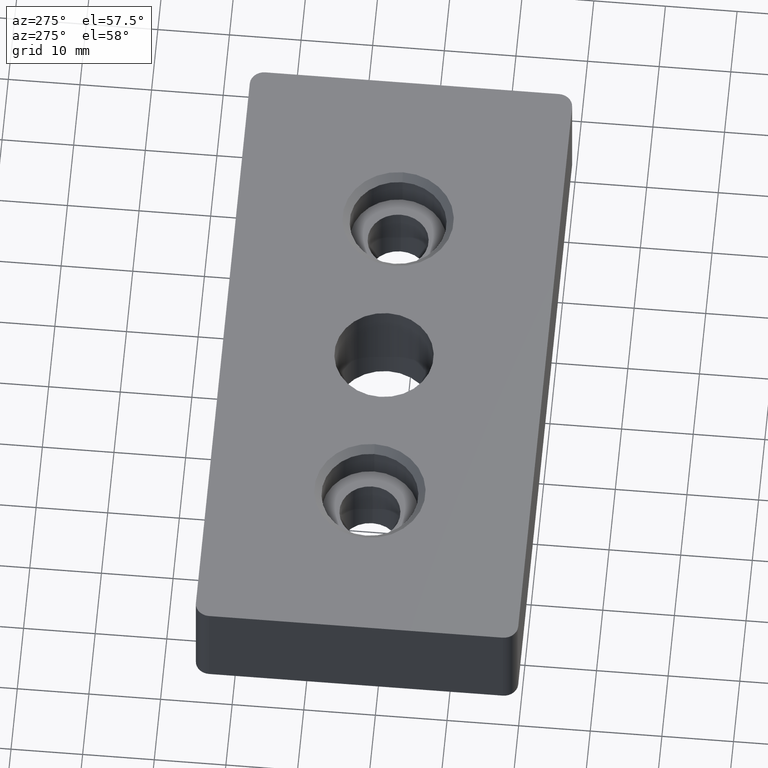
[diagram: clean part render]
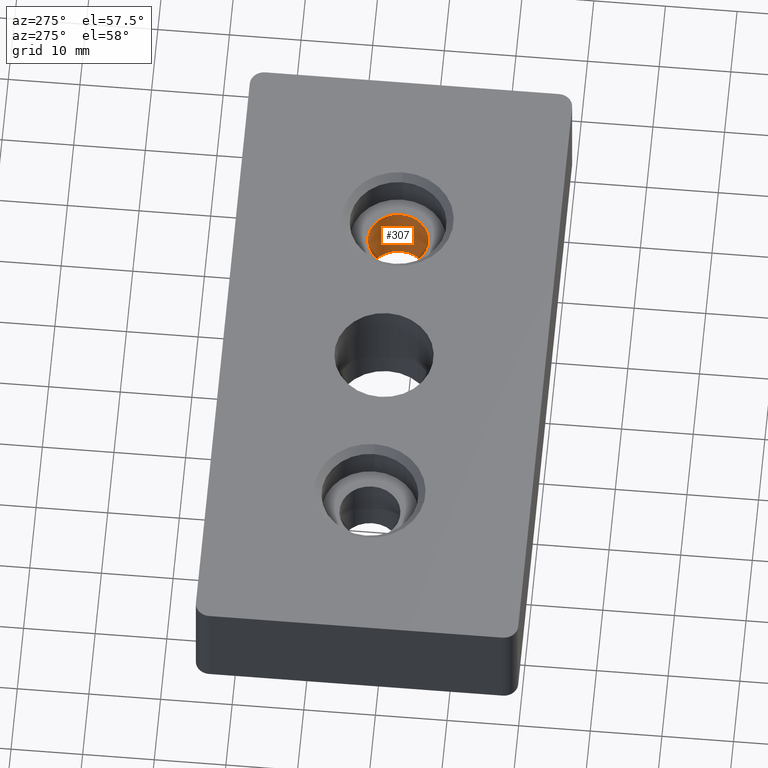
[diagram: same view with one face highlighted and labeled with its STEP entity id]
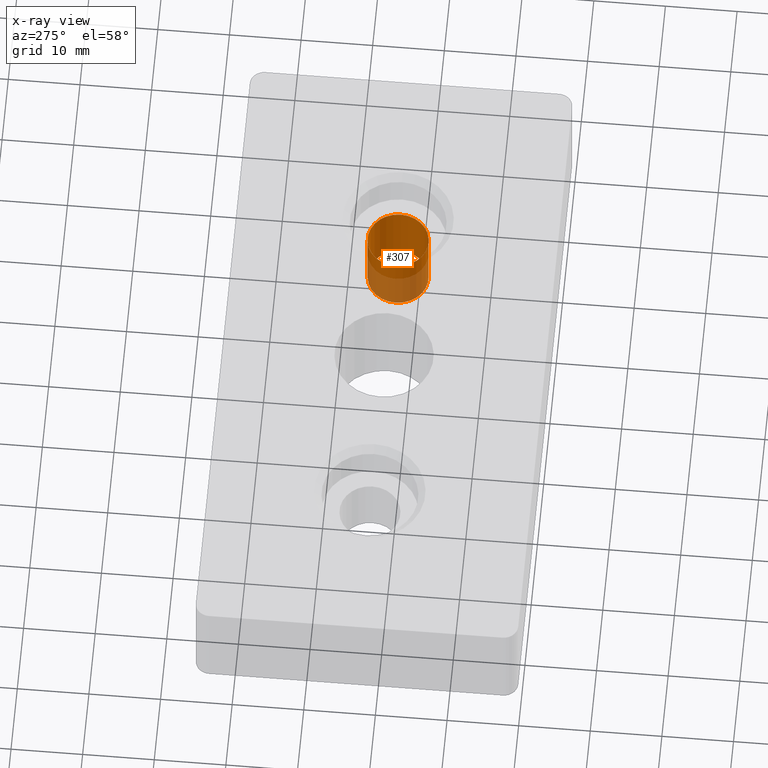
[diagram: x-ray of the same camera — body ghosted, the highlighted face saturated]
A machine part, auxiliary view. The second image highlights one B-rep face of the part: STEP entity #307.
The next image is the same camera in x-ray: the body ghosted, the highlighted face saturated — about 34% of this face is hidden behind the body in this view.
In plain terms, the highlighted cylindrical surface (bore or boss wall) has radius 4.25 mm, axis along (0, 0, -1).
Its self-contained STEP definition (entity closure, byte-faithful):
#23=CYLINDRICAL_SURFACE('',#348,4.25);
#78=FACE_BOUND('',#130,.T.);
#96=FACE_OUTER_BOUND('',#129,.T.);
#129=EDGE_LOOP('',(#282));
#130=EDGE_LOOP('',(#283));
#149=CIRCLE('',#337,4.25);
#151=CIRCLE('',#346,4.25);
#177=VERTEX_POINT('',#509);
#179=VERTEX_POINT('',#525);
#208=EDGE_CURVE('',#177,#177,#149,.T.);
#215=EDGE_CURVE('',#179,#179,#151,.T.);
#282=ORIENTED_EDGE('',*,*,#215,.T.);
#283=ORIENTED_EDGE('',*,*,#208,.F.);
#307=ADVANCED_FACE('',(#96,#78),#23,.F.);
#337=AXIS2_PLACEMENT_3D('',#510,#415,#416);
#346=AXIS2_PLACEMENT_3D('',#526,#438,#439);
#348=AXIS2_PLACEMENT_3D('',#528,#442,#443);
#415=DIRECTION('center_axis',(0.,0.,1.));
#416=DIRECTION('ref_axis',(-1.,0.,0.));
#438=DIRECTION('center_axis',(0.,0.,1.));
#439=DIRECTION('ref_axis',(-1.,0.,0.));
#442=DIRECTION('center_axis',(0.,0.,-1.));
#443=DIRECTION('ref_axis',(-1.,0.,0.));
#509=CARTESIAN_POINT('',(55.5324833985414,13.0678536302736,0.));
#510=CARTESIAN_POINT('Origin',(51.2824833985414,13.0678536302736,0.));
#525=CARTESIAN_POINT('',(55.5324833985414,13.0678536302736,9.5));
#526=CARTESIAN_POINT('Origin',(51.2824833985414,13.0678536302736,9.5));
#528=CARTESIAN_POINT('Origin',(51.2824833985414,13.0678536302736,15.));